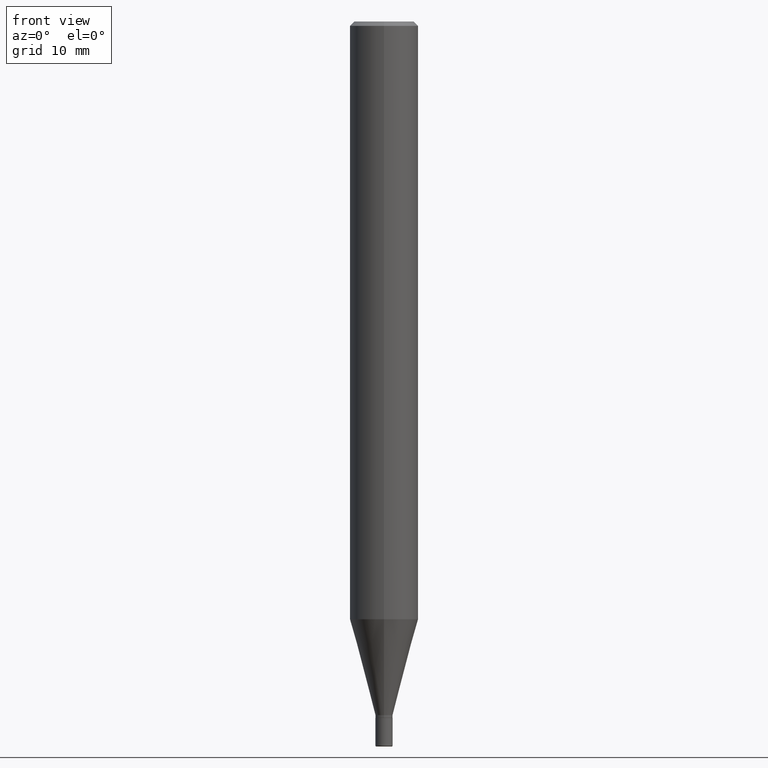
[diagram: clean part render]
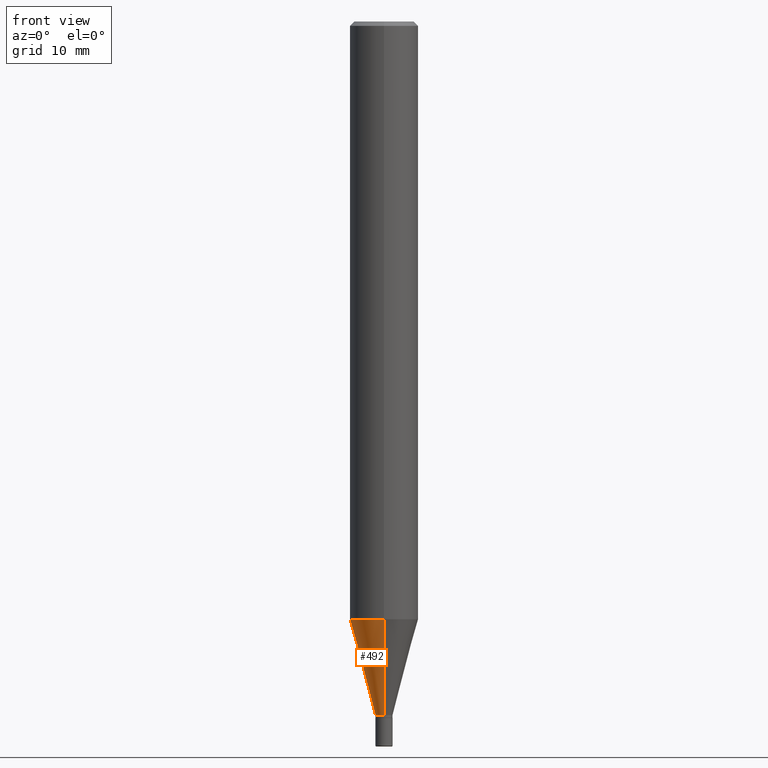
[diagram: same view with one face highlighted and labeled with its STEP entity id]
A machine part, front view. The second image highlights one B-rep face of the part: STEP entity #492.
In plain terms, the highlighted conical surface has half-angle 15 deg.
Its self-contained STEP definition (entity closure, byte-faithful):
#13 = CIRCLE ( 'NONE', #225, 0.02955000000000002069 ) ;
#19 = VERTEX_POINT ( 'NONE', #289 ) ;
#28 = LINE ( 'NONE', #235, #486 ) ;
#33 = EDGE_CURVE ( 'NONE', #19, #83, #471, .T. ) ;
#38 = LINE ( 'NONE', #130, #250 ) ;
#67 = DIRECTION ( 'NONE',  ( -1.807323732225323828E-15, -0.2588190451025172978, 0.9659258262890690894 ) ) ;
#71 = DIRECTION ( 'NONE',  ( -6.982962677686265922E-15, -1.000000000000000000, 4.626330217890369336E-15 ) ) ;
#74 = DIRECTION ( 'NONE',  ( -6.982962677686266711E-15, -1.000000000000000000, 0.000000000000000000 ) ) ;
#82 = DIRECTION ( 'NONE',  ( -6.982962677686266711E-15, -1.000000000000000000, 0.000000000000000000 ) ) ;
#83 = VERTEX_POINT ( 'NONE', #247 ) ;
#90 = DIRECTION ( 'NONE',  ( 1.839019923739594004E-15, 0.2588190451025240701, 0.9659258262890673130 ) ) ;
#107 = ORIENTED_EDGE ( 'NONE', *, *, #327, .T. ) ;
#110 = EDGE_CURVE ( 'NONE', #504, #19, #38, .T. ) ;
#128 = CARTESIAN_POINT ( 'NONE',  ( 5.245581746749487018E-16, 0.02954999999999167321, -2.391600000000000392 ) ) ;
#130 = CARTESIAN_POINT ( 'NONE',  ( 2.099653784171682016E-16, 0.02954999999999167321, -2.391600000000000392 ) ) ;
#146 = VERTEX_POINT ( 'NONE', #325 ) ;
#193 = DIRECTION ( 'NONE',  ( -2.445666505520537191E-29, 3.491198222142504346E-15, 1.000000000000000000 ) ) ;
#211 = FACE_OUTER_BOUND ( 'NONE', #444, .T. ) ;
#225 = AXIS2_PLACEMENT_3D ( 'NONE', #318, #281, #74 ) ;
#235 = CARTESIAN_POINT ( 'NONE',  ( -2.063465471255708403E-16, -0.02955000000000837165, -2.391600000000000392 ) ) ;
#247 = CARTESIAN_POINT ( 'NONE',  ( -8.246878922346977755E-16, -0.1181000000000072270, -2.061126900989775912 ) ) ;
#250 = VECTOR ( 'NONE', #90, 39.37007874015748854 ) ;
#281 = DIRECTION ( 'NONE',  ( -2.445666505520537191E-29, 3.491198222142504346E-15, 1.000000000000000000 ) ) ;
#285 = ORIENTED_EDGE ( 'NONE', *, *, #366, .T. ) ;
#289 = CARTESIAN_POINT ( 'NONE',  ( 8.391509709327282898E-16, 0.1180999999999927802, -2.061126900989776800 ) ) ;
#318 = CARTESIAN_POINT ( 'NONE',  ( 5.849056014602917509E-29, -8.349549668076013435E-15, -2.391600000000000392 ) ) ;
#325 = CARTESIAN_POINT ( 'NONE',  ( -2.063465471255708403E-16, -0.02955000000000837165, -2.391600000000000392 ) ) ;
#327 = EDGE_CURVE ( 'NONE', #504, #146, #13, .T. ) ;
#357 = CONICAL_SURFACE ( 'NONE', #447, 0.02955000000000002069, 0.2617993877991494078 ) ;
#359 = ORIENTED_EDGE ( 'NONE', *, *, #33, .F. ) ;
#366 = EDGE_CURVE ( 'NONE', #146, #83, #28, .T. ) ;
#371 = CARTESIAN_POINT ( 'NONE',  ( 5.849056014602917509E-29, -8.349549668076013435E-15, -2.391600000000000392 ) ) ;
#381 = ORIENTED_EDGE ( 'NONE', *, *, #110, .F. ) ;
#401 = CARTESIAN_POINT ( 'NONE',  ( 5.040829025378040507E-29, -7.195802572345596086E-15, -2.061126900989776356 ) ) ;
#408 = DIRECTION ( 'NONE',  ( -2.445666505520537191E-29, 3.491198222142504346E-15, 1.000000000000000000 ) ) ;
#444 = EDGE_LOOP ( 'NONE', ( #381, #107, #285, #359 ) ) ;
#447 = AXIS2_PLACEMENT_3D ( 'NONE', #371, #408, #82 ) ;
#471 = CIRCLE ( 'NONE', #499, 0.1180999999999999966 ) ;
#486 = VECTOR ( 'NONE', #67, 39.37007874015748854 ) ;
#492 = ADVANCED_FACE ( 'NONE', ( #211 ), #357, .T. ) ;
#499 = AXIS2_PLACEMENT_3D ( 'NONE', #401, #193, #71 ) ;
#504 = VERTEX_POINT ( 'NONE', #128 ) ;